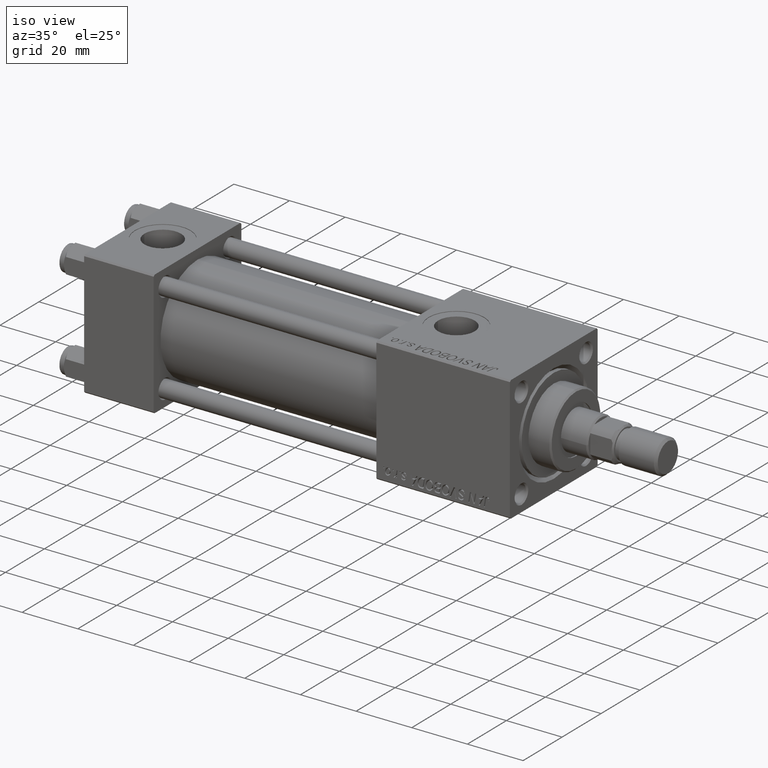
[diagram: clean part render]
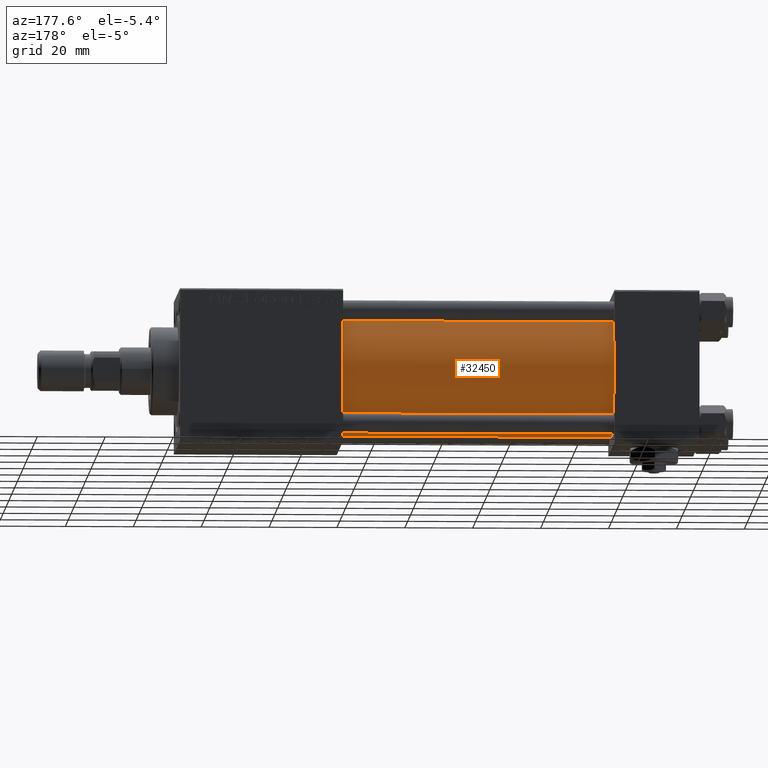
[diagram: tour spotlight — one face highlighted and labeled with its STEP entity id]
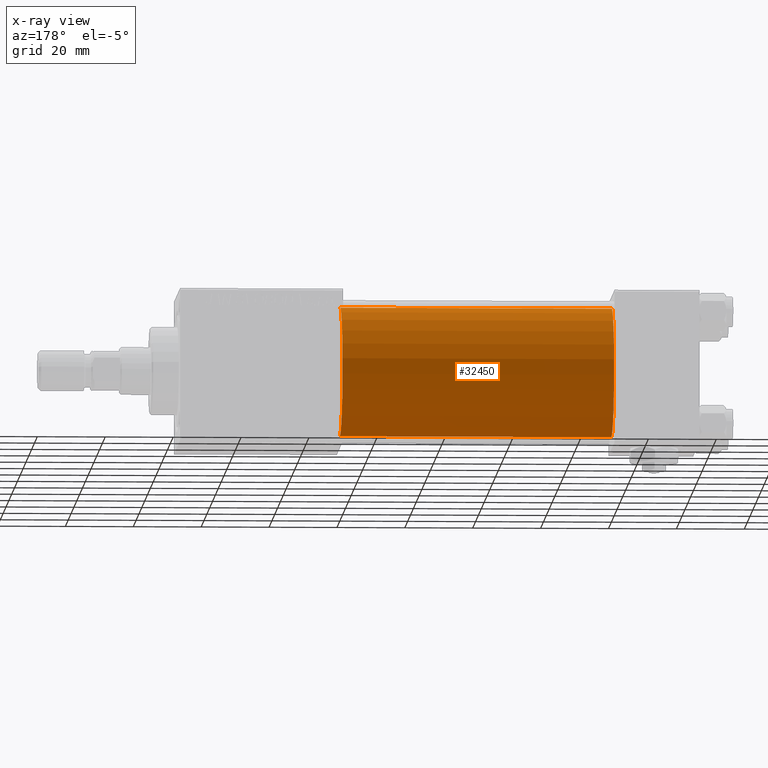
[diagram: x-ray of the same camera — body ghosted, this tour face saturated]
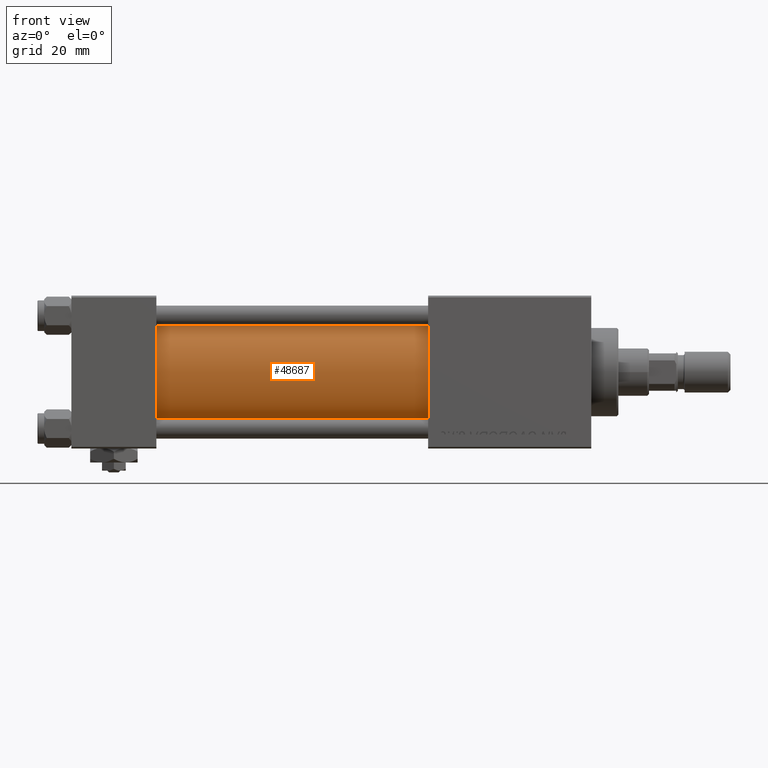
[diagram: tour spotlight — one face highlighted and labeled with its STEP entity id]
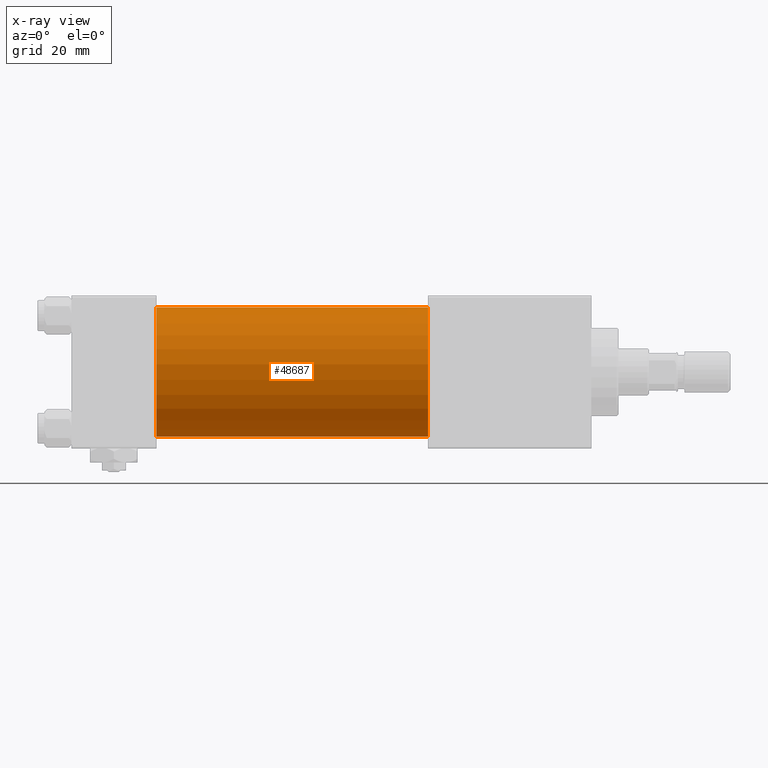
[diagram: x-ray of the same camera — body ghosted, this tour face saturated]
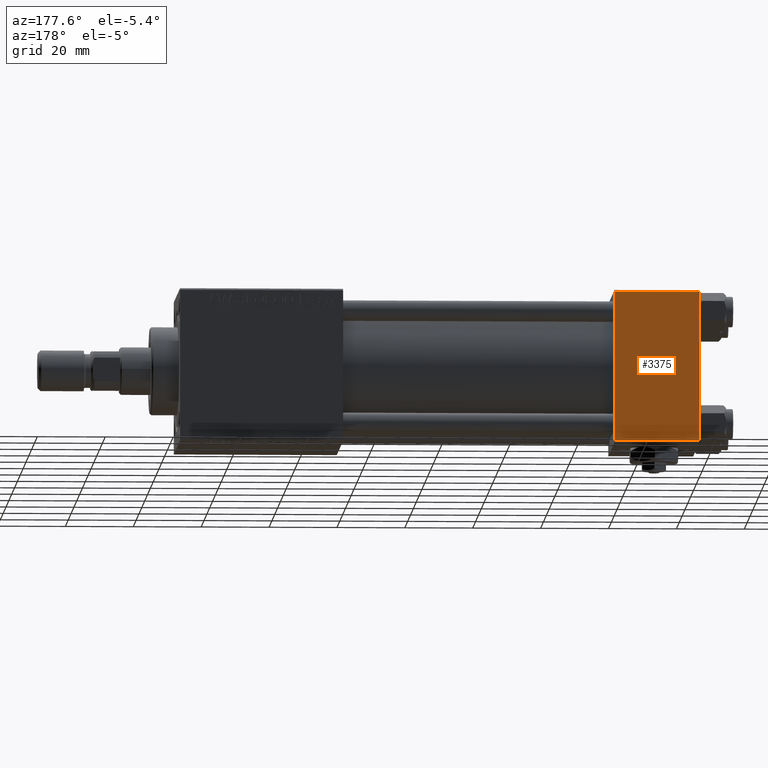
[diagram: tour spotlight — one face highlighted and labeled with its STEP entity id]
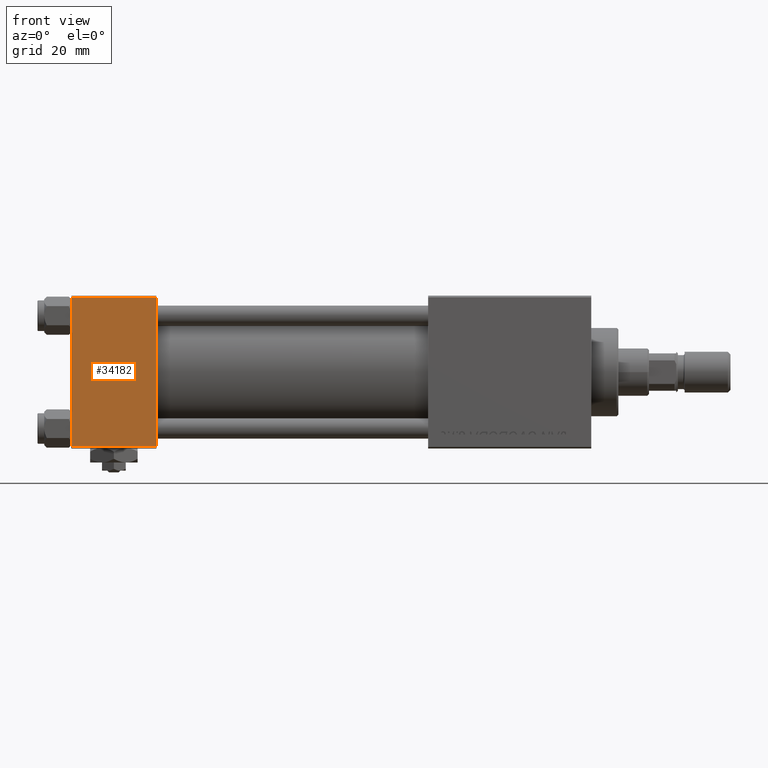
[diagram: tour spotlight — one face highlighted and labeled with its STEP entity id]
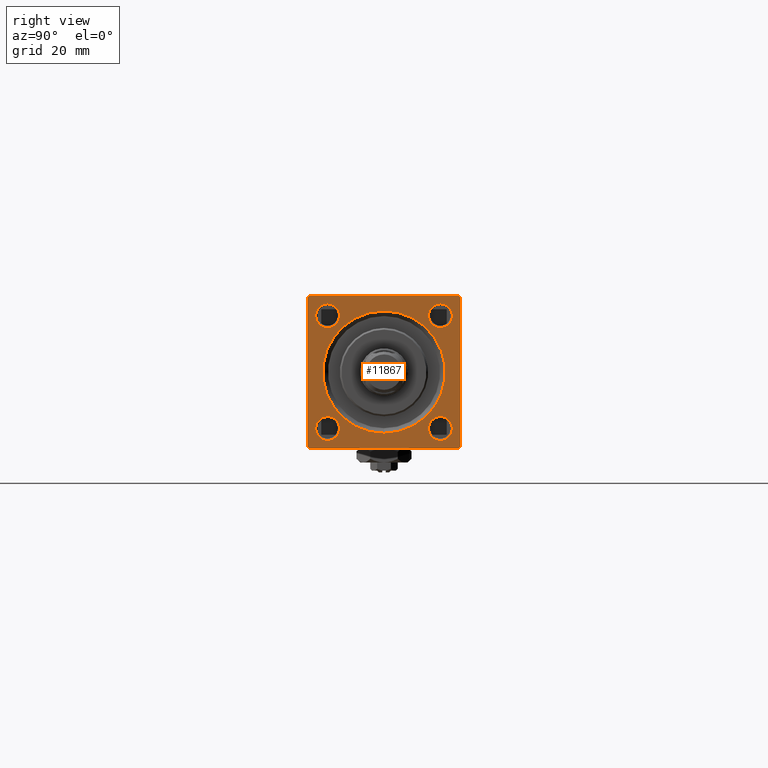
[diagram: tour spotlight — one face highlighted and labeled with its STEP entity id]
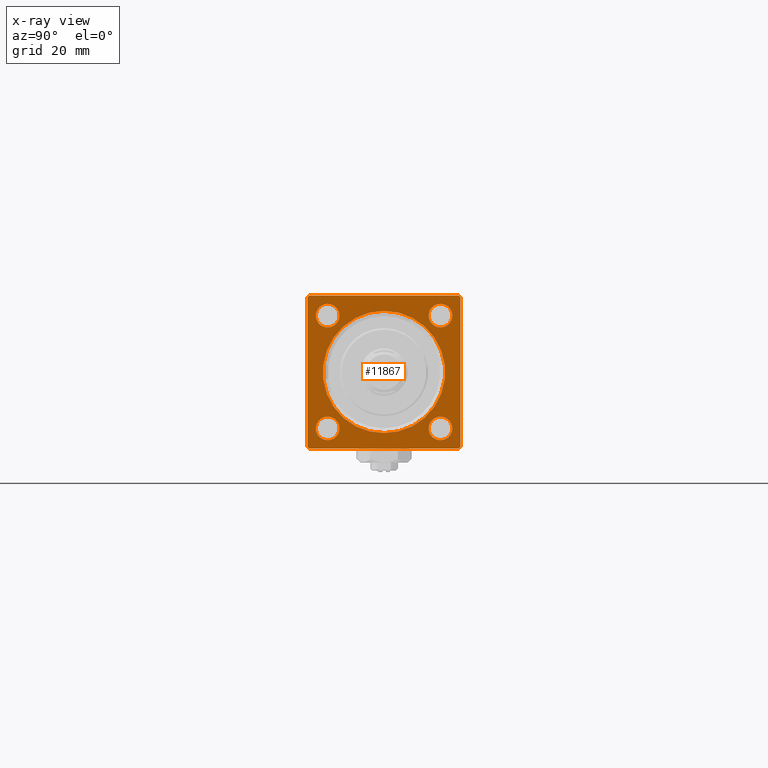
[diagram: x-ray of the same camera — body ghosted, this tour face saturated]
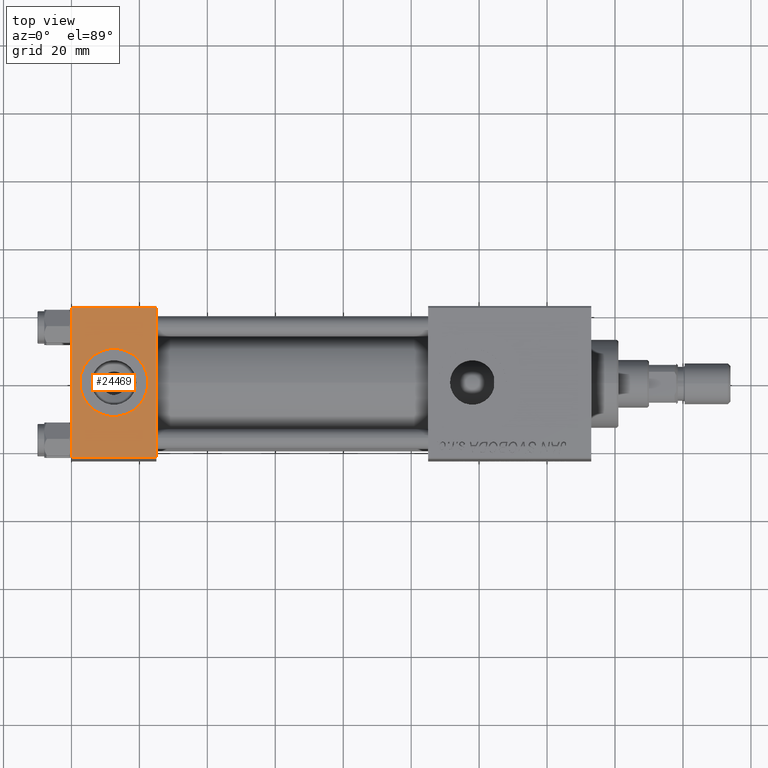
[diagram: tour spotlight — one face highlighted and labeled with its STEP entity id]
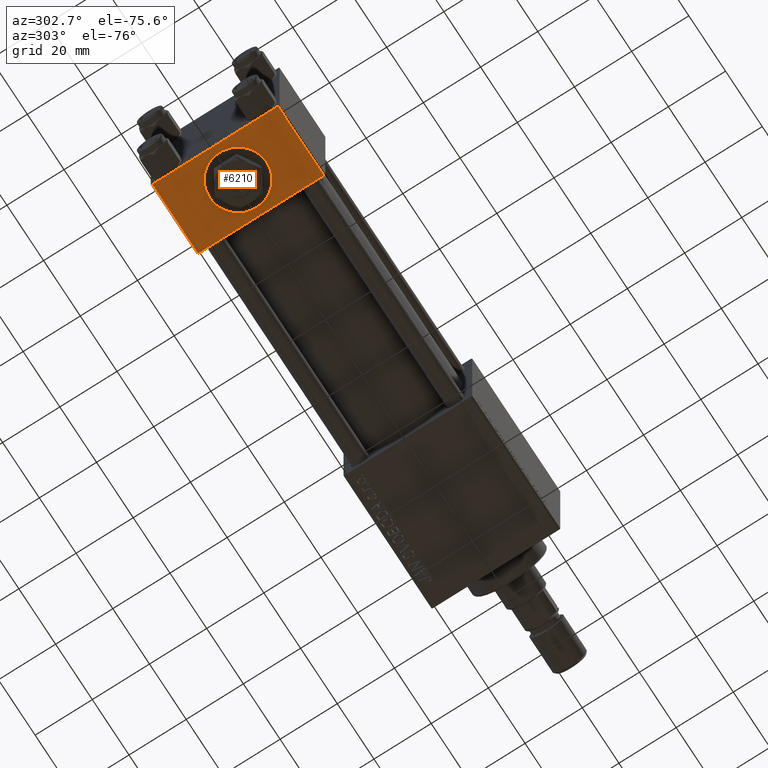
[diagram: tour spotlight — one face highlighted and labeled with its STEP entity id]
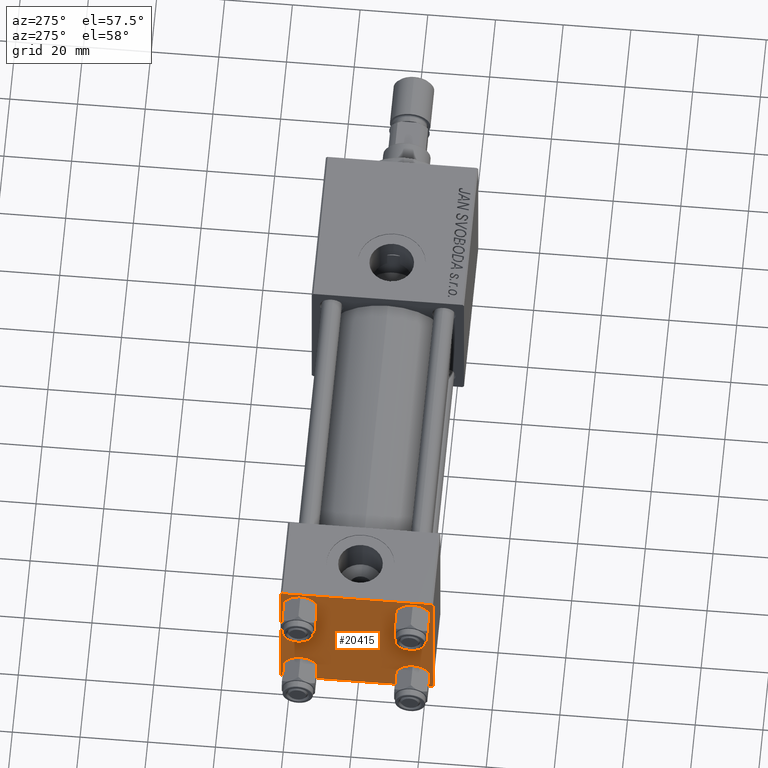
[diagram: tour spotlight — one face highlighted and labeled with its STEP entity id]
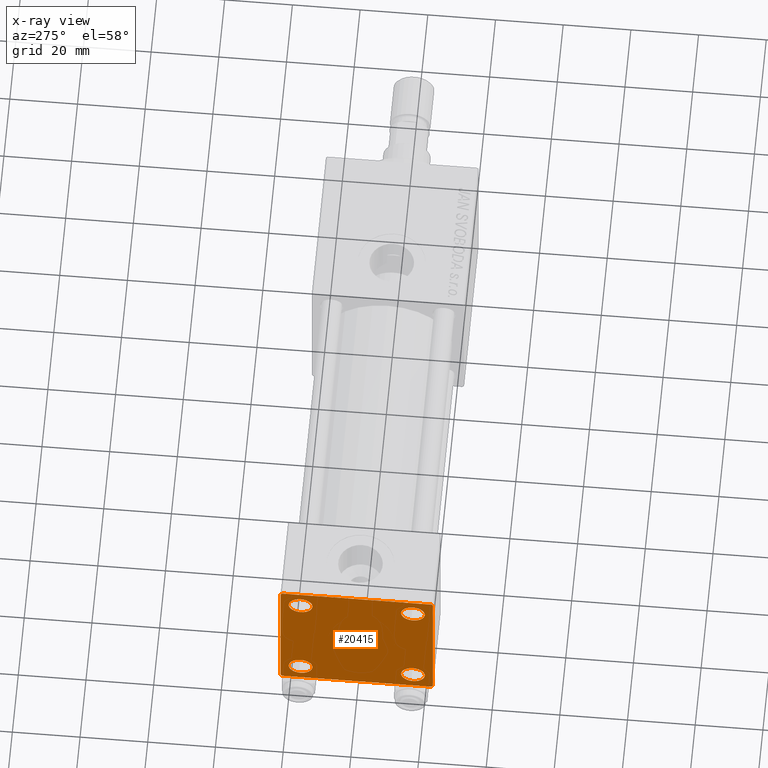
[diagram: x-ray of the same camera — body ghosted, this tour face saturated]
A machine part: a face-by-face anatomy tour. The part has 1214 B-rep faces; the first image is the clean iso view, then the 8 largest visible faces are spotlighted one at a time (largest first), each with its STEP entity span.

Face 1 — auxiliary view, entity #32450. An x-ray twin of the same camera follows (body ghosted, this face saturated) — the face is partly hidden behind the body. In plain terms, the highlighted cylindrical surface (partial cylindrical patch) has radius 19 mm, axis along (-1, -0, -0).
Definition (entity closure, byte-faithful):
#2626 = VERTEX_POINT ( 'NONE', #47678 ) ;
#3446 = ORIENTED_EDGE ( 'NONE', *, *, #18415, .F. ) ;
#6341 = ORIENTED_EDGE ( 'NONE', *, *, #18457, .T. ) ;
#8633 = LINE ( 'NONE', #24800, #45404 ) ;
#9630 = CARTESIAN_POINT ( 'NONE',  ( 105.0000000000000142, -2.602085213965210642E-15, 0.000000000000000000 ) ) ;
#9761 = AXIS2_PLACEMENT_3D ( 'NONE', #9630, #26321, #35319 ) ;
#11617 = ORIENTED_EDGE ( 'NONE', *, *, #37632, .T. ) ;
#14026 = CIRCLE ( 'NONE', #49579, 19.00000000000000000 ) ;
#17356 = DIRECTION ( 'NONE',  ( 1.000000000000000000, 0.000000000000000000, 0.000000000000000000 ) ) ;
#18415 = EDGE_CURVE ( 'NONE', #2626, #24992, #37773, .T. ) ;
#18457 = EDGE_CURVE ( 'NONE', #2626, #36763, #8633, .T. ) ;
#19051 = EDGE_LOOP ( 'NONE', ( #3446, #6341, #11617, #42609 ) ) ;
#19401 = CARTESIAN_POINT ( 'NONE',  ( 105.0000000000000142, -2.602085213965210642E-15, 19.00000000000000000 ) ) ;
#19584 = VERTEX_POINT ( 'NONE', #38293 ) ;
#19602 = VECTOR ( 'NONE', #22861, 1000.000000000000000 ) ;
#21870 = CARTESIAN_POINT ( 'NONE',  ( 105.0000000000000142, -2.602085213965210642E-15, 19.00000000000000000 ) ) ;
#22570 = AXIS2_PLACEMENT_3D ( 'NONE', #45693, #17356, #49141 ) ;
#22861 = DIRECTION ( 'NONE',  ( -1.000000000000000000, -0.000000000000000000, -0.000000000000000000 ) ) ;
#24296 = EDGE_CURVE ( 'NONE', #24992, #19584, #42985, .T. ) ;
#24800 = CARTESIAN_POINT ( 'NONE',  ( 105.0000000000000142, -2.752562955852396712E-16, -19.00000000000000000 ) ) ;
#24992 = VERTEX_POINT ( 'NONE', #21870 ) ;
#26321 = DIRECTION ( 'NONE',  ( -1.000000000000000000, -0.000000000000000000, -0.000000000000000000 ) ) ;
#29563 = DIRECTION ( 'NONE',  ( -1.000000000000000000, -0.000000000000000000, -0.000000000000000000 ) ) ;
#29780 = FACE_OUTER_BOUND ( 'NONE', #19051, .T. ) ;
#32450 = ADVANCED_FACE ( 'NONE', ( #29780 ), #45911, .T. ) ;
#33056 = CARTESIAN_POINT ( 'NONE',  ( 24.99999999999999289, -2.602085213965210642E-15, 0.000000000000000000 ) ) ;
#35319 = DIRECTION ( 'NONE',  ( 0.000000000000000000, 0.000000000000000000, 1.000000000000000000 ) ) ;
#36763 = VERTEX_POINT ( 'NONE', #41496 ) ;
#37632 = EDGE_CURVE ( 'NONE', #36763, #19584, #14026, .T. ) ;
#37773 = CIRCLE ( 'NONE', #22570, 19.00000000000000000 ) ;
#38293 = CARTESIAN_POINT ( 'NONE',  ( 24.99999999999999289, -2.602085213965210642E-15, 19.00000000000000000 ) ) ;
#41496 = CARTESIAN_POINT ( 'NONE',  ( 24.99999999999999289, -2.752562955852396712E-16, -19.00000000000000000 ) ) ;
#42609 = ORIENTED_EDGE ( 'NONE', *, *, #24296, .F. ) ;
#42985 = LINE ( 'NONE', #19401, #19602 ) ;
#44706 = DIRECTION ( 'NONE',  ( 0.000000000000000000, 0.000000000000000000, 1.000000000000000000 ) ) ;
#44964 = DIRECTION ( 'NONE',  ( 1.000000000000000000, -0.000000000000000000, 0.000000000000000000 ) ) ;
#45404 = VECTOR ( 'NONE', #29563, 1000.000000000000000 ) ;
#45693 = CARTESIAN_POINT ( 'NONE',  ( 105.0000000000000142, -2.602085213965210642E-15, 0.000000000000000000 ) ) ;
#45911 = CYLINDRICAL_SURFACE ( 'NONE', #9761, 19.00000000000000000 ) ;
#47678 = CARTESIAN_POINT ( 'NONE',  ( 105.0000000000000142, -2.752562955852396712E-16, -19.00000000000000000 ) ) ;
#49141 = DIRECTION ( 'NONE',  ( 0.000000000000000000, 0.000000000000000000, -1.000000000000000000 ) ) ;
#49579 = AXIS2_PLACEMENT_3D ( 'NONE', #33056, #44964, #44706 ) ;

Face 2 — front view, entity #48687. An x-ray twin of the same camera follows (body ghosted, this face saturated) — the face is partly hidden behind the body. In plain terms, the highlighted cylindrical surface (partial cylindrical patch) has radius 19 mm, axis along (-1, -0, -0).
Definition (entity closure, byte-faithful):
#713 = AXIS2_PLACEMENT_3D ( 'NONE', #39622, #2549, #35123 ) ;
#2549 = DIRECTION ( 'NONE',  ( -1.000000000000000000, -0.000000000000000000, -0.000000000000000000 ) ) ;
#2626 = VERTEX_POINT ( 'NONE', #47678 ) ;
#4378 = DIRECTION ( 'NONE',  ( 0.000000000000000000, 0.000000000000000000, -1.000000000000000000 ) ) ;
#8633 = LINE ( 'NONE', #24800, #45404 ) ;
#11008 = CIRCLE ( 'NONE', #49082, 19.00000000000000000 ) ;
#18457 = EDGE_CURVE ( 'NONE', #2626, #36763, #8633, .T. ) ;
#19401 = CARTESIAN_POINT ( 'NONE',  ( 105.0000000000000142, -2.602085213965210642E-15, 19.00000000000000000 ) ) ;
#19584 = VERTEX_POINT ( 'NONE', #38293 ) ;
#19602 = VECTOR ( 'NONE', #22861, 1000.000000000000000 ) ;
#19736 = CARTESIAN_POINT ( 'NONE',  ( 105.0000000000000142, -2.602085213965210642E-15, 0.000000000000000000 ) ) ;
#21870 = CARTESIAN_POINT ( 'NONE',  ( 105.0000000000000142, -2.602085213965210642E-15, 19.00000000000000000 ) ) ;
#22861 = DIRECTION ( 'NONE',  ( -1.000000000000000000, -0.000000000000000000, -0.000000000000000000 ) ) ;
#23440 = DIRECTION ( 'NONE',  ( 0.000000000000000000, 0.000000000000000000, 1.000000000000000000 ) ) ;
#23472 = CYLINDRICAL_SURFACE ( 'NONE', #713, 19.00000000000000000 ) ;
#24296 = EDGE_CURVE ( 'NONE', #24992, #19584, #42985, .T. ) ;
#24800 = CARTESIAN_POINT ( 'NONE',  ( 105.0000000000000142, -2.752562955852396712E-16, -19.00000000000000000 ) ) ;
#24992 = VERTEX_POINT ( 'NONE', #21870 ) ;
#25802 = ORIENTED_EDGE ( 'NONE', *, *, #24296, .T. ) ;
#26564 = CIRCLE ( 'NONE', #46855, 19.00000000000000000 ) ;
#27452 = FACE_OUTER_BOUND ( 'NONE', #29863, .T. ) ;
#28756 = DIRECTION ( 'NONE',  ( 1.000000000000000000, 0.000000000000000000, 0.000000000000000000 ) ) ;
#29563 = DIRECTION ( 'NONE',  ( -1.000000000000000000, -0.000000000000000000, -0.000000000000000000 ) ) ;
#29755 = EDGE_CURVE ( 'NONE', #19584, #36763, #26564, .T. ) ;
#29863 = EDGE_LOOP ( 'NONE', ( #51728, #39054, #25802, #37314 ) ) ;
#35123 = DIRECTION ( 'NONE',  ( 0.000000000000000000, 0.000000000000000000, 1.000000000000000000 ) ) ;
#36763 = VERTEX_POINT ( 'NONE', #41496 ) ;
#37314 = ORIENTED_EDGE ( 'NONE', *, *, #29755, .T. ) ;
#38293 = CARTESIAN_POINT ( 'NONE',  ( 24.99999999999999289, -2.602085213965210642E-15, 19.00000000000000000 ) ) ;
#39054 = ORIENTED_EDGE ( 'NONE', *, *, #47709, .F. ) ;
#39590 = DIRECTION ( 'NONE',  ( 1.000000000000000000, -0.000000000000000000, 0.000000000000000000 ) ) ;
#39622 = CARTESIAN_POINT ( 'NONE',  ( 105.0000000000000142, -2.602085213965210642E-15, 0.000000000000000000 ) ) ;
#41496 = CARTESIAN_POINT ( 'NONE',  ( 24.99999999999999289, -2.752562955852396712E-16, -19.00000000000000000 ) ) ;
#42985 = LINE ( 'NONE', #19401, #19602 ) ;
#45404 = VECTOR ( 'NONE', #29563, 1000.000000000000000 ) ;
#46855 = AXIS2_PLACEMENT_3D ( 'NONE', #47261, #39590, #23440 ) ;
#47261 = CARTESIAN_POINT ( 'NONE',  ( 24.99999999999999289, -2.602085213965210642E-15, 0.000000000000000000 ) ) ;
#47678 = CARTESIAN_POINT ( 'NONE',  ( 105.0000000000000142, -2.752562955852396712E-16, -19.00000000000000000 ) ) ;
#47709 = EDGE_CURVE ( 'NONE', #24992, #2626, #11008, .T. ) ;
#48687 = ADVANCED_FACE ( 'NONE', ( #27452 ), #23472, .T. ) ;
#49082 = AXIS2_PLACEMENT_3D ( 'NONE', #19736, #28756, #4378 ) ;
#51728 = ORIENTED_EDGE ( 'NONE', *, *, #18457, .F. ) ;

Face 3 — auxiliary view, entity #3375. In plain terms, the highlighted planar face has unit normal (0, 1, 0).
Definition (entity closure, byte-faithful):
#3208 = LINE ( 'NONE', #23857, #19062 ) ;
#3375 = ADVANCED_FACE ( 'NONE', ( #48535 ), #4320, .T. ) ;
#3580 = ORIENTED_EDGE ( 'NONE', *, *, #35492, .T. ) ;
#4068 = DIRECTION ( 'NONE',  ( 0.000000000000000000, -0.000000000000000000, 1.000000000000000000 ) ) ;
#4320 = PLANE ( 'NONE',  #31590 ) ;
#5869 = VECTOR ( 'NONE', #20842, 1000.000000000000000 ) ;
#8990 = CARTESIAN_POINT ( 'NONE',  ( 0.000000000000000000, 22.50000000000000000, 22.50000000000000355 ) ) ;
#9352 = CARTESIAN_POINT ( 'NONE',  ( 25.00000000000000000, 22.50000000000000000, 22.50000000000000355 ) ) ;
#10308 = CARTESIAN_POINT ( 'NONE',  ( 0.000000000000000000, 22.50000000000000000, 21.99999999999999645 ) ) ;
#12258 = CARTESIAN_POINT ( 'NONE',  ( 25.00000000000000000, 22.50000000000000000, 22.50000000000000355 ) ) ;
#15893 = VERTEX_POINT ( 'NONE', #10308 ) ;
#17290 = DIRECTION ( 'NONE',  ( 0.000000000000000000, 0.000000000000000000, -1.000000000000000000 ) ) ;
#17336 = ORIENTED_EDGE ( 'NONE', *, *, #45184, .F. ) ;
#18590 = CARTESIAN_POINT ( 'NONE',  ( 0.000000000000000000, 22.50000000000000000, -21.99999999999996803 ) ) ;
#19062 = VECTOR ( 'NONE', #27844, 1000.000000000000000 ) ;
#20318 = LINE ( 'NONE', #36486, #5869 ) ;
#20842 = DIRECTION ( 'NONE',  ( 1.000000000000000000, 0.000000000000000000, 0.000000000000000000 ) ) ;
#23857 = CARTESIAN_POINT ( 'NONE',  ( 25.00000000000000000, 22.50000000000000000, -21.99999999999998224 ) ) ;
#27844 = DIRECTION ( 'NONE',  ( -1.000000000000000000, 0.000000000000000000, 0.000000000000000000 ) ) ;
#28104 = ORIENTED_EDGE ( 'NONE', *, *, #50775, .T. ) ;
#30420 = CARTESIAN_POINT ( 'NONE',  ( 25.00000000000000000, 22.50000000000000000, 21.99999999999999645 ) ) ;
#30646 = VERTEX_POINT ( 'NONE', #18590 ) ;
#30723 = LINE ( 'NONE', #9352, #30915 ) ;
#30915 = VECTOR ( 'NONE', #17290, 1000.000000000000000 ) ;
#31590 = AXIS2_PLACEMENT_3D ( 'NONE', #12258, #32146, #4068 ) ;
#32146 = DIRECTION ( 'NONE',  ( -0.000000000000000000, 1.000000000000000000, 0.000000000000000000 ) ) ;
#32842 = EDGE_CURVE ( 'NONE', #39282, #30646, #3208, .T. ) ;
#35492 = EDGE_CURVE ( 'NONE', #47214, #39282, #30723, .T. ) ;
#36340 = CARTESIAN_POINT ( 'NONE',  ( 25.00000000000000000, 22.50000000000000000, -21.99999999999996803 ) ) ;
#36486 = CARTESIAN_POINT ( 'NONE',  ( 25.00000000000000000, 22.50000000000000000, 21.99999999999999645 ) ) ;
#39282 = VERTEX_POINT ( 'NONE', #36340 ) ;
#40224 = ORIENTED_EDGE ( 'NONE', *, *, #32842, .T. ) ;
#41378 = VECTOR ( 'NONE', #49495, 1000.000000000000000 ) ;
#43783 = EDGE_LOOP ( 'NONE', ( #3580, #40224, #17336, #28104 ) ) ;
#45184 = EDGE_CURVE ( 'NONE', #15893, #30646, #45274, .T. ) ;
#45274 = LINE ( 'NONE', #8990, #41378 ) ;
#47214 = VERTEX_POINT ( 'NONE', #30420 ) ;
#48535 = FACE_OUTER_BOUND ( 'NONE', #43783, .T. ) ;
#49495 = DIRECTION ( 'NONE',  ( 0.000000000000000000, 0.000000000000000000, -1.000000000000000000 ) ) ;
#50775 = EDGE_CURVE ( 'NONE', #15893, #47214, #20318, .T. ) ;

Face 4 — front view, entity #34182. In plain terms, the highlighted planar face has unit normal (0, 1, 0).
Definition (entity closure, byte-faithful):
#281 = LINE ( 'NONE', #12964, #42610 ) ;
#1088 = CARTESIAN_POINT ( 'NONE',  ( 25.00000000000000000, -22.50000000000000000, 22.00000000000000000 ) ) ;
#2701 = ORIENTED_EDGE ( 'NONE', *, *, #51672, .T. ) ;
#2755 = ORIENTED_EDGE ( 'NONE', *, *, #44263, .T. ) ;
#4503 = DIRECTION ( 'NONE',  ( 0.000000000000000000, 0.000000000000000000, -1.000000000000000000 ) ) ;
#5268 = EDGE_CURVE ( 'NONE', #34497, #41048, #52123, .T. ) ;
#8141 = EDGE_CURVE ( 'NONE', #34497, #37888, #281, .T. ) ;
#9722 = CARTESIAN_POINT ( 'NONE',  ( 0.000000000000000000, -22.50000000000000000, -21.99999999999997158 ) ) ;
#10324 = VERTEX_POINT ( 'NONE', #9722 ) ;
#11808 = CARTESIAN_POINT ( 'NONE',  ( 25.00000000000000000, -22.50000000000000000, -21.99999999999997158 ) ) ;
#12139 = DIRECTION ( 'NONE',  ( -1.000000000000000000, 0.000000000000000000, 0.000000000000000000 ) ) ;
#12964 = CARTESIAN_POINT ( 'NONE',  ( 25.00000000000000000, -22.50000000000000000, 22.50000000000000000 ) ) ;
#15415 = VECTOR ( 'NONE', #12139, 1000.000000000000000 ) ;
#17280 = PLANE ( 'NONE',  #36899 ) ;
#21865 = VECTOR ( 'NONE', #4503, 1000.000000000000000 ) ;
#22654 = CARTESIAN_POINT ( 'NONE',  ( 0.000000000000000000, -22.50000000000000000, 22.00000000000000000 ) ) ;
#24760 = ORIENTED_EDGE ( 'NONE', *, *, #8141, .F. ) ;
#24896 = DIRECTION ( 'NONE',  ( 0.000000000000000000, 0.000000000000000000, -1.000000000000000000 ) ) ;
#24986 = DIRECTION ( 'NONE',  ( -0.000000000000000000, 1.000000000000000000, 0.000000000000000000 ) ) ;
#27249 = LINE ( 'NONE', #35198, #48138 ) ;
#28046 = CARTESIAN_POINT ( 'NONE',  ( 25.00000000000000000, -22.50000000000000000, 22.00000000000000000 ) ) ;
#29488 = CARTESIAN_POINT ( 'NONE',  ( 25.00000000000000000, -22.50000000000000000, 22.50000000000000000 ) ) ;
#29773 = EDGE_LOOP ( 'NONE', ( #2755, #2701, #24760, #31088 ) ) ;
#31088 = ORIENTED_EDGE ( 'NONE', *, *, #5268, .T. ) ;
#34182 = ADVANCED_FACE ( 'NONE', ( #48549 ), #17280, .F. ) ;
#34497 = VERTEX_POINT ( 'NONE', #1088 ) ;
#35198 = CARTESIAN_POINT ( 'NONE',  ( 25.00000000000000000, -22.50000000000000000, -21.99999999999998579 ) ) ;
#36045 = LINE ( 'NONE', #40523, #21865 ) ;
#36899 = AXIS2_PLACEMENT_3D ( 'NONE', #29488, #24986, #45620 ) ;
#37888 = VERTEX_POINT ( 'NONE', #11808 ) ;
#40523 = CARTESIAN_POINT ( 'NONE',  ( 0.000000000000000000, -22.50000000000000000, 22.50000000000000000 ) ) ;
#41048 = VERTEX_POINT ( 'NONE', #22654 ) ;
#42610 = VECTOR ( 'NONE', #24896, 1000.000000000000000 ) ;
#44263 = EDGE_CURVE ( 'NONE', #41048, #10324, #36045, .T. ) ;
#45620 = DIRECTION ( 'NONE',  ( 0.000000000000000000, -0.000000000000000000, 1.000000000000000000 ) ) ;
#48138 = VECTOR ( 'NONE', #48862, 1000.000000000000000 ) ;
#48549 = FACE_OUTER_BOUND ( 'NONE', #29773, .T. ) ;
#48862 = DIRECTION ( 'NONE',  ( 1.000000000000000000, 0.000000000000000000, 0.000000000000000000 ) ) ;
#51672 = EDGE_CURVE ( 'NONE', #10324, #37888, #27249, .T. ) ;
#52123 = LINE ( 'NONE', #28046, #15415 ) ;

Face 5 — right view, entity #11867. An x-ray twin of the same camera follows (body ghosted, this face saturated) — the face is partly hidden behind the body. In plain terms, the highlighted planar face has unit normal (-1, 0, 0).
Definition (entity closure, byte-faithful):
#16 = LINE ( 'NONE', #40524, #11276 ) ;
#631 = DIRECTION ( 'NONE',  ( -1.000000000000000000, 0.000000000000000000, -0.000000000000000000 ) ) ;
#951 = CARTESIAN_POINT ( 'NONE',  ( 153.0000000000000284, 0.000000000000000000, 0.000000000000000000 ) ) ;
#1298 = CARTESIAN_POINT ( 'NONE',  ( 153.0000000000000284, -22.49999999999999645, 21.99999999999999289 ) ) ;
#1410 = LINE ( 'NONE', #17545, #7377 ) ;
#1635 = EDGE_LOOP ( 'NONE', ( #19410, #44924 ) ) ;
#2666 = EDGE_LOOP ( 'NONE', ( #18609, #16557 ) ) ;
#2767 = EDGE_CURVE ( 'NONE', #7584, #42730, #23954, .T. ) ;
#2773 = EDGE_CURVE ( 'NONE', #32184, #50708, #16, .T. ) ;
#2889 = PLANE ( 'NONE',  #19052 ) ;
#3322 = CARTESIAN_POINT ( 'NONE',  ( 153.0000000000000284, -16.60000000000000497, -16.60000000000000497 ) ) ;
#4377 = CARTESIAN_POINT ( 'NONE',  ( 153.0000000000000284, -16.59999999999999787, 16.59999999999999787 ) ) ;
#4634 = DIRECTION ( 'NONE',  ( 0.000000000000000000, 0.000000000000000000, 1.000000000000000000 ) ) ;
#6039 = CARTESIAN_POINT ( 'NONE',  ( 153.0000000000000284, 21.99999999999998934, -22.49999999999999645 ) ) ;
#6488 = AXIS2_PLACEMENT_3D ( 'NONE', #32415, #631, #17022 ) ;
#6589 = CARTESIAN_POINT ( 'NONE',  ( 153.0000000000000284, 0.000000000000000000, 0.000000000000000000 ) ) ;
#6725 = CARTESIAN_POINT ( 'NONE',  ( 153.0000000000000284, -16.60000000000000497, -16.60000000000000497 ) ) ;
#7036 = CARTESIAN_POINT ( 'NONE',  ( 153.0000000000000284, -22.49999999999999645, 22.49999999999999289 ) ) ;
#7377 = VECTOR ( 'NONE', #33731, 1000.000000000000000 ) ;
#7539 = CARTESIAN_POINT ( 'NONE',  ( 153.0000000000000284, 22.00000000000000355, 22.50000000000000355 ) ) ;
#7584 = VERTEX_POINT ( 'NONE', #43498 ) ;
#7780 = CIRCLE ( 'NONE', #19609, 3.499999999999989342 ) ;
#8674 = EDGE_LOOP ( 'NONE', ( #34470, #23121 ) ) ;
#8697 = CARTESIAN_POINT ( 'NONE',  ( 153.0000000000000284, 16.59999999999999787, 16.60000000000000497 ) ) ;
#9638 = CARTESIAN_POINT ( 'NONE',  ( 153.0000000000000284, 22.50000000000000355, 22.50000000000000355 ) ) ;
#9700 = EDGE_CURVE ( 'NONE', #18922, #34379, #44350, .T. ) ;
#9799 = CARTESIAN_POINT ( 'NONE',  ( 153.0000000000000284, -21.99999999999999645, -22.50000000000000000 ) ) ;
#9815 = VECTOR ( 'NONE', #14982, 1000.000000000000000 ) ;
#10709 = DIRECTION ( 'NONE',  ( 0.000000000000000000, 0.000000000000000000, 1.000000000000000000 ) ) ;
#11087 = CARTESIAN_POINT ( 'NONE',  ( 153.0000000000000284, -16.60000000000000497, -13.10000000000001386 ) ) ;
#11276 = VECTOR ( 'NONE', #11929, 1000.000000000000000 ) ;
#11570 = ORIENTED_EDGE ( 'NONE', *, *, #14454, .T. ) ;
#11609 = ORIENTED_EDGE ( 'NONE', *, *, #45510, .T. ) ;
#11867 = ADVANCED_FACE ( 'NONE', ( #26732, #13749, #34422, #46059, #42878, #26216 ), #2889, .F. ) ;
#11929 = DIRECTION ( 'NONE',  ( 0.000000000000000000, -1.000000000000000000, -7.709882115452476934E-17 ) ) ;
#12583 = LINE ( 'NONE', #9638, #26977 ) ;
#12661 = ORIENTED_EDGE ( 'NONE', *, *, #31411, .T. ) ;
#12994 = CARTESIAN_POINT ( 'NONE',  ( 153.0000000000000284, -16.59999999999999787, 20.09999999999998721 ) ) ;
#13094 = DIRECTION ( 'NONE',  ( 0.000000000000000000, -1.000000000000000000, -2.312964634635742957E-16 ) ) ;
#13120 = VERTEX_POINT ( 'NONE', #31970 ) ;
#13725 = VERTEX_POINT ( 'NONE', #11087 ) ;
#13749 = FACE_BOUND ( 'NONE', #2666, .T. ) ;
#14007 = DIRECTION ( 'NONE',  ( -0.000000000000000000, 0.000000000000000000, 1.000000000000000000 ) ) ;
#14098 = EDGE_CURVE ( 'NONE', #40817, #17555, #48083, .T. ) ;
#14226 = ORIENTED_EDGE ( 'NONE', *, *, #39367, .T. ) ;
#14454 = EDGE_CURVE ( 'NONE', #42730, #7584, #47058, .T. ) ;
#14482 = VECTOR ( 'NONE', #39855, 1000.000000000000114 ) ;
#14792 = CIRCLE ( 'NONE', #45249, 3.499999999999989342 ) ;
#14961 = ORIENTED_EDGE ( 'NONE', *, *, #2773, .F. ) ;
#14982 = DIRECTION ( 'NONE',  ( 0.000000000000000000, 0.000000000000000000, -1.000000000000000000 ) ) ;
#15065 = VERTEX_POINT ( 'NONE', #19830 ) ;
#15121 = DIRECTION ( 'NONE',  ( 0.000000000000000000, 0.000000000000000000, 1.000000000000000000 ) ) ;
#15315 = EDGE_CURVE ( 'NONE', #13725, #34320, #32722, .T. ) ;
#15480 = EDGE_CURVE ( 'NONE', #47731, #40817, #1410, .T. ) ;
#16079 = CARTESIAN_POINT ( 'NONE',  ( 153.0000000000000284, -16.59999999999999787, 13.10000000000000675 ) ) ;
#16557 = ORIENTED_EDGE ( 'NONE', *, *, #20955, .T. ) ;
#16623 = AXIS2_PLACEMENT_3D ( 'NONE', #8697, #16897, #36780 ) ;
#16643 = VECTOR ( 'NONE', #45827, 999.9999999999998863 ) ;
#16742 = DIRECTION ( 'NONE',  ( -0.000000000000000000, 0.7071067811865376918, 0.7071067811865574537 ) ) ;
#16897 = DIRECTION ( 'NONE',  ( -1.000000000000000000, 0.000000000000000000, -0.000000000000000000 ) ) ;
#17014 = DIRECTION ( 'NONE',  ( 0.000000000000000000, 0.000000000000000000, -1.000000000000000000 ) ) ;
#17022 = DIRECTION ( 'NONE',  ( 0.000000000000000000, 0.000000000000000000, 1.000000000000000000 ) ) ;
#17545 = CARTESIAN_POINT ( 'NONE',  ( 153.0000000000000284, -22.49999999999999645, 21.99999999999999289 ) ) ;
#17555 = VERTEX_POINT ( 'NONE', #32621 ) ;
#17645 = VERTEX_POINT ( 'NONE', #12994 ) ;
#17685 = CARTESIAN_POINT ( 'NONE',  ( 153.0000000000000284, 16.59999999999999787, -13.10000000000001386 ) ) ;
#18107 = EDGE_CURVE ( 'NONE', #30068, #15065, #25947, .T. ) ;
#18520 = EDGE_CURVE ( 'NONE', #21457, #17645, #34447, .T. ) ;
#18609 = ORIENTED_EDGE ( 'NONE', *, *, #18520, .T. ) ;
#18922 = VERTEX_POINT ( 'NONE', #20364 ) ;
#19005 = CARTESIAN_POINT ( 'NONE',  ( 153.0000000000000284, -21.99999999999998224, -22.50000000000000000 ) ) ;
#19052 = AXIS2_PLACEMENT_3D ( 'NONE', #6589, #34938, #14007 ) ;
#19410 = ORIENTED_EDGE ( 'NONE', *, *, #30019, .T. ) ;
#19459 = DIRECTION ( 'NONE',  ( 0.000000000000000000, 0.000000000000000000, 1.000000000000000000 ) ) ;
#19609 = AXIS2_PLACEMENT_3D ( 'NONE', #4377, #48854, #4634 ) ;
#19830 = CARTESIAN_POINT ( 'NONE',  ( 153.0000000000000284, 16.59999999999999787, 13.10000000000001386 ) ) ;
#19838 = CIRCLE ( 'NONE', #41838, 18.00000000000000355 ) ;
#19868 = DIRECTION ( 'NONE',  ( -1.000000000000000000, 0.000000000000000000, -0.000000000000000000 ) ) ;
#20013 = ORIENTED_EDGE ( 'NONE', *, *, #23042, .T. ) ;
#20364 = CARTESIAN_POINT ( 'NONE',  ( 153.0000000000000284, 2.204364238465235822E-15, 18.00000000000000355 ) ) ;
#20955 = EDGE_CURVE ( 'NONE', #17645, #21457, #7780, .T. ) ;
#21457 = VERTEX_POINT ( 'NONE', #16079 ) ;
#21526 = CARTESIAN_POINT ( 'NONE',  ( 153.0000000000000284, -16.60000000000000497, -20.09999999999999432 ) ) ;
#22640 = CARTESIAN_POINT ( 'NONE',  ( 153.0000000000000284, -16.59999999999999787, 16.59999999999999787 ) ) ;
#22842 = DIRECTION ( 'NONE',  ( -1.000000000000000000, 0.000000000000000000, -0.000000000000000000 ) ) ;
#22890 = DIRECTION ( 'NONE',  ( -1.000000000000000000, 0.000000000000000000, -0.000000000000000000 ) ) ;
#23042 = EDGE_CURVE ( 'NONE', #13120, #42605, #35102, .T. ) ;
#23121 = ORIENTED_EDGE ( 'NONE', *, *, #18107, .T. ) ;
#23224 = ORIENTED_EDGE ( 'NONE', *, *, #15315, .T. ) ;
#23954 = CIRCLE ( 'NONE', #50172, 3.499999999999989342 ) ;
#25410 = ORIENTED_EDGE ( 'NONE', *, *, #14098, .T. ) ;
#25947 = CIRCLE ( 'NONE', #16623, 3.499999999999989342 ) ;
#26032 = CARTESIAN_POINT ( 'NONE',  ( 153.0000000000000284, 0.000000000000000000, -18.00000000000000355 ) ) ;
#26082 = AXIS2_PLACEMENT_3D ( 'NONE', #51139, #42417, #15121 ) ;
#26216 = FACE_OUTER_BOUND ( 'NONE', #50408, .T. ) ;
#26237 = CARTESIAN_POINT ( 'NONE',  ( 153.0000000000000284, 22.50000000000000355, -21.99999999999995381 ) ) ;
#26732 = FACE_BOUND ( 'NONE', #8674, .T. ) ;
#26901 = DIRECTION ( 'NONE',  ( -1.000000000000000000, 0.000000000000000000, -0.000000000000000000 ) ) ;
#26977 = VECTOR ( 'NONE', #13094, 1000.000000000000000 ) ;
#27894 = VECTOR ( 'NONE', #16742, 999.9999999999998863 ) ;
#28623 = CARTESIAN_POINT ( 'NONE',  ( 153.0000000000000284, 16.59999999999999787, -16.60000000000000497 ) ) ;
#28955 = LINE ( 'NONE', #45603, #27894 ) ;
#29174 = ORIENTED_EDGE ( 'NONE', *, *, #52082, .F. ) ;
#30019 = EDGE_CURVE ( 'NONE', #34379, #18922, #19838, .T. ) ;
#30068 = VERTEX_POINT ( 'NONE', #49027 ) ;
#30899 = ORIENTED_EDGE ( 'NONE', *, *, #15480, .T. ) ;
#31411 = EDGE_CURVE ( 'NONE', #34320, #13725, #14792, .T. ) ;
#31970 = CARTESIAN_POINT ( 'NONE',  ( 153.0000000000000284, 22.50000000000000355, 22.00000000000000355 ) ) ;
#32184 = VERTEX_POINT ( 'NONE', #6039 ) ;
#32415 = CARTESIAN_POINT ( 'NONE',  ( 153.0000000000000284, 16.59999999999999787, -16.60000000000000497 ) ) ;
#32621 = CARTESIAN_POINT ( 'NONE',  ( 153.0000000000000284, -22.49999999999999645, -21.99999999999997868 ) ) ;
#32722 = CIRCLE ( 'NONE', #42003, 3.499999999999989342 ) ;
#33731 = DIRECTION ( 'NONE',  ( -0.000000000000000000, -0.7071067811865378028, -0.7071067811865573427 ) ) ;
#33926 = LINE ( 'NONE', #9799, #16643 ) ;
#34320 = VERTEX_POINT ( 'NONE', #21526 ) ;
#34379 = VERTEX_POINT ( 'NONE', #26032 ) ;
#34422 = FACE_BOUND ( 'NONE', #51516, .T. ) ;
#34447 = CIRCLE ( 'NONE', #50502, 3.499999999999989342 ) ;
#34470 = ORIENTED_EDGE ( 'NONE', *, *, #49277, .T. ) ;
#34568 = DIRECTION ( 'NONE',  ( -1.000000000000000000, 0.000000000000000000, -0.000000000000000000 ) ) ;
#34938 = DIRECTION ( 'NONE',  ( -1.000000000000000000, 0.000000000000000000, -0.000000000000000000 ) ) ;
#35102 = LINE ( 'NONE', #7539, #14482 ) ;
#36093 = DIRECTION ( 'NONE',  ( 0.000000000000000000, 0.000000000000000000, 1.000000000000000000 ) ) ;
#36780 = DIRECTION ( 'NONE',  ( 0.000000000000000000, 0.000000000000000000, 1.000000000000000000 ) ) ;
#37186 = VECTOR ( 'NONE', #17014, 1000.000000000000000 ) ;
#38327 = EDGE_LOOP ( 'NONE', ( #42905, #11570 ) ) ;
#39039 = DIRECTION ( 'NONE',  ( 0.000000000000000000, 0.000000000000000000, 1.000000000000000000 ) ) ;
#39367 = EDGE_CURVE ( 'NONE', #17555, #50708, #33926, .T. ) ;
#39438 = VERTEX_POINT ( 'NONE', #26237 ) ;
#39855 = DIRECTION ( 'NONE',  ( 0.000000000000000000, -0.7071067811865474617, 0.7071067811865474617 ) ) ;
#40148 = DIRECTION ( 'NONE',  ( -1.000000000000000000, 0.000000000000000000, -0.000000000000000000 ) ) ;
#40524 = CARTESIAN_POINT ( 'NONE',  ( 153.0000000000000284, 22.50000000000000355, -22.49999999999999645 ) ) ;
#40817 = VERTEX_POINT ( 'NONE', #1298 ) ;
#40912 = CARTESIAN_POINT ( 'NONE',  ( 153.0000000000000284, -21.99999999999999645, 22.49999999999999289 ) ) ;
#41838 = AXIS2_PLACEMENT_3D ( 'NONE', #43502, #22842, #36093 ) ;
#42003 = AXIS2_PLACEMENT_3D ( 'NONE', #6725, #22890, #39039 ) ;
#42417 = DIRECTION ( 'NONE',  ( -1.000000000000000000, 0.000000000000000000, -0.000000000000000000 ) ) ;
#42605 = VERTEX_POINT ( 'NONE', #45769 ) ;
#42730 = VERTEX_POINT ( 'NONE', #17685 ) ;
#42878 = FACE_BOUND ( 'NONE', #1635, .T. ) ;
#42905 = ORIENTED_EDGE ( 'NONE', *, *, #2767, .T. ) ;
#43498 = CARTESIAN_POINT ( 'NONE',  ( 153.0000000000000284, 16.59999999999999787, -20.09999999999999432 ) ) ;
#43502 = CARTESIAN_POINT ( 'NONE',  ( 153.0000000000000284, 0.000000000000000000, 0.000000000000000000 ) ) ;
#44350 = CIRCLE ( 'NONE', #46866, 18.00000000000000355 ) ;
#44924 = ORIENTED_EDGE ( 'NONE', *, *, #9700, .T. ) ;
#45097 = LINE ( 'NONE', #45611, #37186 ) ;
#45249 = AXIS2_PLACEMENT_3D ( 'NONE', #3322, #26901, #19459 ) ;
#45510 = EDGE_CURVE ( 'NONE', #42605, #47731, #12583, .T. ) ;
#45603 = CARTESIAN_POINT ( 'NONE',  ( 153.0000000000000284, 22.50000000000000355, -21.99999999999996803 ) ) ;
#45611 = CARTESIAN_POINT ( 'NONE',  ( 153.0000000000000284, 22.50000000000000355, 22.50000000000000355 ) ) ;
#45754 = EDGE_CURVE ( 'NONE', #32184, #39438, #28955, .T. ) ;
#45769 = CARTESIAN_POINT ( 'NONE',  ( 153.0000000000000284, 22.00000000000000355, 22.50000000000000355 ) ) ;
#45827 = DIRECTION ( 'NONE',  ( 0.000000000000000000, 0.7071067811865425767, -0.7071067811865525687 ) ) ;
#46059 = FACE_BOUND ( 'NONE', #38327, .T. ) ;
#46866 = AXIS2_PLACEMENT_3D ( 'NONE', #951, #40148, #48347 ) ;
#47058 = CIRCLE ( 'NONE', #6488, 3.499999999999989342 ) ;
#47731 = VERTEX_POINT ( 'NONE', #40912 ) ;
#48083 = LINE ( 'NONE', #7036, #9815 ) ;
#48347 = DIRECTION ( 'NONE',  ( 0.000000000000000000, 0.000000000000000000, 1.000000000000000000 ) ) ;
#48854 = DIRECTION ( 'NONE',  ( -1.000000000000000000, 0.000000000000000000, -0.000000000000000000 ) ) ;
#48895 = CIRCLE ( 'NONE', #26082, 3.499999999999989342 ) ;
#49027 = CARTESIAN_POINT ( 'NONE',  ( 153.0000000000000284, 16.59999999999999787, 20.09999999999999432 ) ) ;
#49277 = EDGE_CURVE ( 'NONE', #15065, #30068, #48895, .T. ) ;
#49660 = ORIENTED_EDGE ( 'NONE', *, *, #45754, .T. ) ;
#50172 = AXIS2_PLACEMENT_3D ( 'NONE', #28623, #19868, #51914 ) ;
#50408 = EDGE_LOOP ( 'NONE', ( #25410, #14226, #14961, #49660, #29174, #20013, #11609, #30899 ) ) ;
#50502 = AXIS2_PLACEMENT_3D ( 'NONE', #22640, #34568, #10709 ) ;
#50708 = VERTEX_POINT ( 'NONE', #19005 ) ;
#51139 = CARTESIAN_POINT ( 'NONE',  ( 153.0000000000000284, 16.59999999999999787, 16.60000000000000497 ) ) ;
#51516 = EDGE_LOOP ( 'NONE', ( #12661, #23224 ) ) ;
#51914 = DIRECTION ( 'NONE',  ( 0.000000000000000000, 0.000000000000000000, 1.000000000000000000 ) ) ;
#52082 = EDGE_CURVE ( 'NONE', #13120, #39438, #45097, .T. ) ;

Face 6 — top view, entity #24469. In plain terms, the highlighted planar face has unit normal (0, 0, -1).
Definition (entity closure, byte-faithful):
#155 = AXIS2_PLACEMENT_3D ( 'NONE', #43461, #39217, #7160 ) ;
#1742 = CARTESIAN_POINT ( 'NONE',  ( 2.500000000000003997, -5.100766768294543310E-16, 22.50000000000000000 ) ) ;
#3377 = EDGE_CURVE ( 'NONE', #34777, #24994, #19741, .T. ) ;
#3772 = ORIENTED_EDGE ( 'NONE', *, *, #26559, .F. ) ;
#5193 = ORIENTED_EDGE ( 'NONE', *, *, #3377, .F. ) ;
#6026 = EDGE_CURVE ( 'NONE', #20328, #20904, #7390, .T. ) ;
#7160 = DIRECTION ( 'NONE',  ( 0.000000000000000000, 1.000000000000000000, 7.709882115452476934E-17 ) ) ;
#7349 = VECTOR ( 'NONE', #36596, 1000.000000000000000 ) ;
#7390 = LINE ( 'NONE', #39175, #11239 ) ;
#8540 = DIRECTION ( 'NONE',  ( 1.000000000000000000, 0.000000000000000000, 0.000000000000000000 ) ) ;
#10134 = DIRECTION ( 'NONE',  ( 0.000000000000000000, -1.000000000000000000, -7.709882115452476934E-17 ) ) ;
#10876 = FACE_BOUND ( 'NONE', #51977, .T. ) ;
#10970 = VERTEX_POINT ( 'NONE', #46563 ) ;
#11239 = VECTOR ( 'NONE', #31506, 1000.000000000000000 ) ;
#11552 = VECTOR ( 'NONE', #10134, 1000.000000000000000 ) ;
#12524 = DIRECTION ( 'NONE',  ( 0.000000000000000000, 0.000000000000000000, 1.000000000000000000 ) ) ;
#13918 = ORIENTED_EDGE ( 'NONE', *, *, #38755, .T. ) ;
#16206 = CARTESIAN_POINT ( 'NONE',  ( 12.50000000000000000, -1.734723475976807094E-15, 22.50000000000000000 ) ) ;
#16444 = CARTESIAN_POINT ( 'NONE',  ( 25.00000000000000000, -21.99999999999999289, 22.50000000000000000 ) ) ;
#16863 = DIRECTION ( 'NONE',  ( 0.000000000000000000, 0.000000000000000000, 1.000000000000000000 ) ) ;
#18596 = CARTESIAN_POINT ( 'NONE',  ( 0.000000000000000000, 22.50000000000000000, 22.50000000000000355 ) ) ;
#19706 = AXIS2_PLACEMENT_3D ( 'NONE', #16206, #12524, #8540 ) ;
#19741 = CIRCLE ( 'NONE', #19706, 9.999999999999998224 ) ;
#20328 = VERTEX_POINT ( 'NONE', #21947 ) ;
#20428 = LINE ( 'NONE', #16444, #7349 ) ;
#20898 = CARTESIAN_POINT ( 'NONE',  ( 0.000000000000000000, -21.99999999999997868, 22.50000000000000000 ) ) ;
#20904 = VERTEX_POINT ( 'NONE', #32721 ) ;
#20917 = CARTESIAN_POINT ( 'NONE',  ( 0.000000000000000000, 21.99999999999999289, 22.50000000000000355 ) ) ;
#21616 = ORIENTED_EDGE ( 'NONE', *, *, #39179, .T. ) ;
#21947 = CARTESIAN_POINT ( 'NONE',  ( 25.00000000000000000, 21.99999999999999289, 22.50000000000000355 ) ) ;
#22514 = VERTEX_POINT ( 'NONE', #20898 ) ;
#23789 = DIRECTION ( 'NONE',  ( 1.000000000000000000, 0.000000000000000000, 0.000000000000000000 ) ) ;
#24469 = ADVANCED_FACE ( 'NONE', ( #10876, #43196 ), #38691, .F. ) ;
#24655 = EDGE_CURVE ( 'NONE', #20328, #10970, #36049, .T. ) ;
#24994 = VERTEX_POINT ( 'NONE', #1742 ) ;
#26559 = EDGE_CURVE ( 'NONE', #24994, #34777, #28177, .T. ) ;
#27313 = EDGE_LOOP ( 'NONE', ( #13918, #21616, #40302, #47145 ) ) ;
#28177 = CIRCLE ( 'NONE', #29872, 9.999999999999998224 ) ;
#29872 = AXIS2_PLACEMENT_3D ( 'NONE', #37013, #16863, #23789 ) ;
#30285 = LINE ( 'NONE', #18596, #11552 ) ;
#31506 = DIRECTION ( 'NONE',  ( 0.000000000000000000, -1.000000000000000000, -7.709882115452476934E-17 ) ) ;
#32721 = CARTESIAN_POINT ( 'NONE',  ( 25.00000000000000000, -21.99999999999997868, 22.50000000000000000 ) ) ;
#34108 = CARTESIAN_POINT ( 'NONE',  ( 22.50000000000000000, -1.734723475976807094E-15, 22.50000000000000000 ) ) ;
#34777 = VERTEX_POINT ( 'NONE', #34108 ) ;
#36049 = LINE ( 'NONE', #20917, #36529 ) ;
#36529 = VECTOR ( 'NONE', #52178, 1000.000000000000000 ) ;
#36596 = DIRECTION ( 'NONE',  ( 1.000000000000000000, 0.000000000000000000, 0.000000000000000000 ) ) ;
#37013 = CARTESIAN_POINT ( 'NONE',  ( 12.50000000000000000, -1.734723475976807094E-15, 22.50000000000000000 ) ) ;
#38691 = PLANE ( 'NONE',  #155 ) ;
#38755 = EDGE_CURVE ( 'NONE', #10970, #22514, #30285, .T. ) ;
#39175 = CARTESIAN_POINT ( 'NONE',  ( 25.00000000000000000, 22.50000000000000000, 22.50000000000000355 ) ) ;
#39179 = EDGE_CURVE ( 'NONE', #22514, #20904, #20428, .T. ) ;
#39217 = DIRECTION ( 'NONE',  ( 0.000000000000000000, 7.709882115452476934E-17, -1.000000000000000000 ) ) ;
#40302 = ORIENTED_EDGE ( 'NONE', *, *, #6026, .F. ) ;
#43196 = FACE_OUTER_BOUND ( 'NONE', #27313, .T. ) ;
#43461 = CARTESIAN_POINT ( 'NONE',  ( 25.00000000000000000, 22.50000000000000000, 22.50000000000000355 ) ) ;
#46563 = CARTESIAN_POINT ( 'NONE',  ( 0.000000000000000000, 21.99999999999999289, 22.50000000000000355 ) ) ;
#47145 = ORIENTED_EDGE ( 'NONE', *, *, #24655, .T. ) ;
#51977 = EDGE_LOOP ( 'NONE', ( #5193, #3772 ) ) ;
#52178 = DIRECTION ( 'NONE',  ( -1.000000000000000000, 0.000000000000000000, 0.000000000000000000 ) ) ;

Face 7 — auxiliary view, entity #6210. In plain terms, the highlighted planar face has unit normal (0, 0, -1).
Definition (entity closure, byte-faithful):
#292 = AXIS2_PLACEMENT_3D ( 'NONE', #24592, #32552, #33335 ) ;
#916 = CARTESIAN_POINT ( 'NONE',  ( 12.50000000000000178, 10.00000000000000533, -22.50000000000000000 ) ) ;
#1030 = CARTESIAN_POINT ( 'NONE',  ( 12.50000000000000178, 3.566060716959379104E-15, -22.50000000000000000 ) ) ;
#2650 = EDGE_CURVE ( 'NONE', #19864, #41527, #3997, .T. ) ;
#3997 = LINE ( 'NONE', #20130, #41714 ) ;
#4053 = EDGE_CURVE ( 'NONE', #5774, #19864, #52384, .T. ) ;
#5170 = ORIENTED_EDGE ( 'NONE', *, *, #2650, .T. ) ;
#5332 = AXIS2_PLACEMENT_3D ( 'NONE', #33071, #45500, #40740 ) ;
#5734 = EDGE_LOOP ( 'NONE', ( #16272, #38351 ) ) ;
#5774 = VERTEX_POINT ( 'NONE', #48029 ) ;
#6210 = ADVANCED_FACE ( 'NONE', ( #28314, #32291 ), #17154, .T. ) ;
#6216 = EDGE_CURVE ( 'NONE', #15456, #23131, #26482, .T. ) ;
#9820 = ORIENTED_EDGE ( 'NONE', *, *, #10648, .F. ) ;
#10648 = EDGE_CURVE ( 'NONE', #23071, #41527, #22532, .T. ) ;
#11271 = CARTESIAN_POINT ( 'NONE',  ( 25.00000000000000000, 21.99999999999999289, -22.49999999999999645 ) ) ;
#11703 = ORIENTED_EDGE ( 'NONE', *, *, #4053, .T. ) ;
#13837 = VECTOR ( 'NONE', #44186, 1000.000000000000000 ) ;
#14702 = DIRECTION ( 'NONE',  ( 1.000000000000000000, 0.000000000000000000, 0.000000000000000000 ) ) ;
#15456 = VERTEX_POINT ( 'NONE', #37684 ) ;
#16030 = VECTOR ( 'NONE', #14702, 1000.000000000000000 ) ;
#16272 = ORIENTED_EDGE ( 'NONE', *, *, #28359, .F. ) ;
#17154 = PLANE ( 'NONE',  #292 ) ;
#17162 = DIRECTION ( 'NONE',  ( 0.000000000000000000, -1.734723475976806848E-16, -1.000000000000000000 ) ) ;
#19458 = CARTESIAN_POINT ( 'NONE',  ( 0.000000000000000000, 21.99999999999999289, -22.49999999999999645 ) ) ;
#19864 = VERTEX_POINT ( 'NONE', #45841 ) ;
#20130 = CARTESIAN_POINT ( 'NONE',  ( 0.000000000000000000, -21.99999999999998579, -22.50000000000000711 ) ) ;
#20966 = CARTESIAN_POINT ( 'NONE',  ( 0.000000000000000000, -21.99999999999997158, -22.50000000000000711 ) ) ;
#22532 = LINE ( 'NONE', #46883, #42683 ) ;
#23071 = VERTEX_POINT ( 'NONE', #19458 ) ;
#23131 = VERTEX_POINT ( 'NONE', #916 ) ;
#24592 = CARTESIAN_POINT ( 'NONE',  ( 25.00000000000000000, 22.50000000000000000, -22.49999999999999645 ) ) ;
#26482 = CIRCLE ( 'NONE', #5332, 10.00000000000000178 ) ;
#27790 = CARTESIAN_POINT ( 'NONE',  ( 25.00000000000000000, 22.50000000000000000, -22.49999999999999645 ) ) ;
#28314 = FACE_BOUND ( 'NONE', #5734, .T. ) ;
#28359 = EDGE_CURVE ( 'NONE', #23131, #15456, #32484, .T. ) ;
#29557 = EDGE_LOOP ( 'NONE', ( #9820, #43571, #11703, #5170 ) ) ;
#30887 = LINE ( 'NONE', #11271, #16030 ) ;
#32291 = FACE_OUTER_BOUND ( 'NONE', #29557, .T. ) ;
#32484 = CIRCLE ( 'NONE', #36710, 10.00000000000000178 ) ;
#32552 = DIRECTION ( 'NONE',  ( 0.000000000000000000, 2.312964634635742957E-16, -1.000000000000000000 ) ) ;
#33071 = CARTESIAN_POINT ( 'NONE',  ( 12.50000000000000178, 3.566060716959379104E-15, -22.50000000000000000 ) ) ;
#33335 = DIRECTION ( 'NONE',  ( 0.000000000000000000, 1.000000000000000000, 2.312964634635742957E-16 ) ) ;
#36710 = AXIS2_PLACEMENT_3D ( 'NONE', #1030, #17162, #45250 ) ;
#37684 = CARTESIAN_POINT ( 'NONE',  ( 12.50000000000000355, -9.999999999999998224, -22.50000000000000000 ) ) ;
#38351 = ORIENTED_EDGE ( 'NONE', *, *, #6216, .F. ) ;
#38689 = DIRECTION ( 'NONE',  ( 0.000000000000000000, -1.000000000000000000, -2.312964634635742957E-16 ) ) ;
#40740 = DIRECTION ( 'NONE',  ( 0.000000000000000000, 1.000000000000000000, 0.000000000000000000 ) ) ;
#40776 = DIRECTION ( 'NONE',  ( -1.000000000000000000, 0.000000000000000000, 0.000000000000000000 ) ) ;
#41527 = VERTEX_POINT ( 'NONE', #20966 ) ;
#41714 = VECTOR ( 'NONE', #40776, 1000.000000000000000 ) ;
#42683 = VECTOR ( 'NONE', #38689, 1000.000000000000000 ) ;
#43571 = ORIENTED_EDGE ( 'NONE', *, *, #47613, .T. ) ;
#44186 = DIRECTION ( 'NONE',  ( 0.000000000000000000, -1.000000000000000000, -2.312964634635742957E-16 ) ) ;
#45250 = DIRECTION ( 'NONE',  ( 0.000000000000000000, 1.000000000000000000, 0.000000000000000000 ) ) ;
#45500 = DIRECTION ( 'NONE',  ( 0.000000000000000000, -1.734723475976806848E-16, -1.000000000000000000 ) ) ;
#45841 = CARTESIAN_POINT ( 'NONE',  ( 25.00000000000000000, -21.99999999999997158, -22.50000000000000711 ) ) ;
#46883 = CARTESIAN_POINT ( 'NONE',  ( 0.000000000000000000, 22.50000000000000000, -22.49999999999999645 ) ) ;
#47613 = EDGE_CURVE ( 'NONE', #23071, #5774, #30887, .T. ) ;
#48029 = CARTESIAN_POINT ( 'NONE',  ( 25.00000000000000000, 21.99999999999999289, -22.49999999999999645 ) ) ;
#52384 = LINE ( 'NONE', #27790, #13837 ) ;

Face 8 — auxiliary view, entity #20415. An x-ray twin of the same camera follows (body ghosted, this face saturated) — the face is partly hidden behind the body. In plain terms, the highlighted planar face has unit normal (-1, 0, 0).
Definition (entity closure, byte-faithful):
#1257 = CARTESIAN_POINT ( 'NONE',  ( 0.000000000000000000, -16.59999999999999076, 16.60000000000000853 ) ) ;
#1448 = AXIS2_PLACEMENT_3D ( 'NONE', #28189, #40875, #12545 ) ;
#2185 = CARTESIAN_POINT ( 'NONE',  ( 0.000000000000000000, 16.59999999999999787, 16.60000000000000497 ) ) ;
#3395 = DIRECTION ( 'NONE',  ( 1.000000000000000000, -0.000000000000000000, 0.000000000000000000 ) ) ;
#3661 = FACE_OUTER_BOUND ( 'NONE', #48617, .T. ) ;
#4100 = VERTEX_POINT ( 'NONE', #12138 ) ;
#4503 = DIRECTION ( 'NONE',  ( 0.000000000000000000, 0.000000000000000000, -1.000000000000000000 ) ) ;
#5032 = CARTESIAN_POINT ( 'NONE',  ( 0.000000000000000000, 22.25000000000014566, -22.24999999999984013 ) ) ;
#6932 = DIRECTION ( 'NONE',  ( 0.000000000000000000, 0.000000000000000000, 1.000000000000000000 ) ) ;
#6942 = DIRECTION ( 'NONE',  ( 1.000000000000000000, -0.000000000000000000, 0.000000000000000000 ) ) ;
#7298 = VERTEX_POINT ( 'NONE', #26107 ) ;
#7362 = CARTESIAN_POINT ( 'NONE',  ( 0.000000000000000000, 0.000000000000000000, 0.000000000000000000 ) ) ;
#7535 = ORIENTED_EDGE ( 'NONE', *, *, #15367, .T. ) ;
#8990 = CARTESIAN_POINT ( 'NONE',  ( 0.000000000000000000, 22.50000000000000000, 22.50000000000000355 ) ) ;
#9209 = VERTEX_POINT ( 'NONE', #17716 ) ;
#9722 = CARTESIAN_POINT ( 'NONE',  ( 0.000000000000000000, -22.50000000000000000, -21.99999999999997158 ) ) ;
#10134 = DIRECTION ( 'NONE',  ( 0.000000000000000000, -1.000000000000000000, -7.709882115452476934E-17 ) ) ;
#10248 = AXIS2_PLACEMENT_3D ( 'NONE', #7362, #48653, #31737 ) ;
#10308 = CARTESIAN_POINT ( 'NONE',  ( 0.000000000000000000, 22.50000000000000000, 21.99999999999999645 ) ) ;
#10324 = VERTEX_POINT ( 'NONE', #9722 ) ;
#10431 = CARTESIAN_POINT ( 'NONE',  ( 0.000000000000000000, 22.24999999999999645, 22.24999999999999645 ) ) ;
#10648 = EDGE_CURVE ( 'NONE', #23071, #41527, #22532, .T. ) ;
#10857 = CIRCLE ( 'NONE', #32028, 3.499999999999996003 ) ;
#10970 = VERTEX_POINT ( 'NONE', #46563 ) ;
#11480 = CIRCLE ( 'NONE', #32635, 3.499999999999996003 ) ;
#11552 = VECTOR ( 'NONE', #10134, 1000.000000000000000 ) ;
#11870 = LINE ( 'NONE', #35456, #43626 ) ;
#12134 = VERTEX_POINT ( 'NONE', #47628 ) ;
#12138 = CARTESIAN_POINT ( 'NONE',  ( 0.000000000000000000, -16.59999999999999076, -13.10000000000001030 ) ) ;
#12545 = DIRECTION ( 'NONE',  ( 0.000000000000000000, 0.000000000000000000, 1.000000000000000000 ) ) ;
#12579 = EDGE_CURVE ( 'NONE', #10970, #15893, #26346, .T. ) ;
#12890 = DIRECTION ( 'NONE',  ( 1.000000000000000000, -0.000000000000000000, 0.000000000000000000 ) ) ;
#12899 = ORIENTED_EDGE ( 'NONE', *, *, #23700, .T. ) ;
#12931 = ORIENTED_EDGE ( 'NONE', *, *, #38755, .F. ) ;
#12955 = VECTOR ( 'NONE', #21181, 1000.000000000000000 ) ;
#13145 = DIRECTION ( 'NONE',  ( 0.000000000000000000, 0.000000000000000000, 1.000000000000000000 ) ) ;
#13164 = VERTEX_POINT ( 'NONE', #17348 ) ;
#13376 = DIRECTION ( 'NONE',  ( 0.000000000000000000, 0.7071067811865474617, -0.7071067811865474617 ) ) ;
#14747 = VERTEX_POINT ( 'NONE', #20151 ) ;
#15301 = ORIENTED_EDGE ( 'NONE', *, *, #12579, .T. ) ;
#15367 = EDGE_CURVE ( 'NONE', #9209, #4100, #36163, .T. ) ;
#15555 = FACE_BOUND ( 'NONE', #34639, .T. ) ;
#15694 = VERTEX_POINT ( 'NONE', #50571 ) ;
#15893 = VERTEX_POINT ( 'NONE', #10308 ) ;
#16069 = DIRECTION ( 'NONE',  ( 0.000000000000000000, 0.000000000000000000, 1.000000000000000000 ) ) ;
#16547 = CARTESIAN_POINT ( 'NONE',  ( -0.000000000000000000, -22.24999999999984013, 22.25000000000015277 ) ) ;
#17348 = CARTESIAN_POINT ( 'NONE',  ( 0.000000000000000000, -16.59999999999999076, 20.10000000000000853 ) ) ;
#17394 = CARTESIAN_POINT ( 'NONE',  ( 0.000000000000000000, -16.59999999999999076, -16.60000000000000853 ) ) ;
#17662 = CIRCLE ( 'NONE', #47259, 3.499999999999996003 ) ;
#17716 = CARTESIAN_POINT ( 'NONE',  ( 0.000000000000000000, -16.59999999999999076, -20.10000000000000497 ) ) ;
#18423 = DIRECTION ( 'NONE',  ( 0.000000000000000000, 0.000000000000000000, 1.000000000000000000 ) ) ;
#18590 = CARTESIAN_POINT ( 'NONE',  ( 0.000000000000000000, 22.50000000000000000, -21.99999999999996803 ) ) ;
#18596 = CARTESIAN_POINT ( 'NONE',  ( 0.000000000000000000, 22.50000000000000000, 22.50000000000000355 ) ) ;
#19326 = AXIS2_PLACEMENT_3D ( 'NONE', #43241, #6942, #47992 ) ;
#19345 = CARTESIAN_POINT ( 'NONE',  ( 0.000000000000000000, 16.59999999999999787, -13.10000000000000675 ) ) ;
#19407 = ORIENTED_EDGE ( 'NONE', *, *, #50164, .T. ) ;
#19458 = CARTESIAN_POINT ( 'NONE',  ( 0.000000000000000000, 21.99999999999999289, -22.49999999999999645 ) ) ;
#19525 = ORIENTED_EDGE ( 'NONE', *, *, #46926, .T. ) ;
#20012 = DIRECTION ( 'NONE',  ( -0.000000000000000000, 0.7071067811865525687, 0.7071067811865425767 ) ) ;
#20151 = CARTESIAN_POINT ( 'NONE',  ( 0.000000000000000000, 16.59999999999999787, 20.10000000000000142 ) ) ;
#20415 = ADVANCED_FACE ( 'NONE', ( #35974, #27774, #43649, #15555, #3661 ), #51844, .T. ) ;
#20898 = CARTESIAN_POINT ( 'NONE',  ( 0.000000000000000000, -21.99999999999997868, 22.50000000000000000 ) ) ;
#20966 = CARTESIAN_POINT ( 'NONE',  ( 0.000000000000000000, -21.99999999999997158, -22.50000000000000711 ) ) ;
#21149 = VECTOR ( 'NONE', #20012, 999.9999999999998863 ) ;
#21181 = DIRECTION ( 'NONE',  ( -0.000000000000000000, -0.7071067811865426878, -0.7071067811865524577 ) ) ;
#21479 = ORIENTED_EDGE ( 'NONE', *, *, #43233, .T. ) ;
#21865 = VECTOR ( 'NONE', #4503, 1000.000000000000000 ) ;
#22514 = VERTEX_POINT ( 'NONE', #20898 ) ;
#22532 = LINE ( 'NONE', #46883, #42683 ) ;
#22654 = CARTESIAN_POINT ( 'NONE',  ( 0.000000000000000000, -22.50000000000000000, 22.00000000000000000 ) ) ;
#23071 = VERTEX_POINT ( 'NONE', #19458 ) ;
#23700 = EDGE_CURVE ( 'NONE', #7298, #32865, #51695, .T. ) ;
#23992 = LINE ( 'NONE', #16547, #21149 ) ;
#26107 = CARTESIAN_POINT ( 'NONE',  ( 0.000000000000000000, 16.59999999999999787, -20.10000000000000142 ) ) ;
#26346 = LINE ( 'NONE', #10431, #41930 ) ;
#27234 = CARTESIAN_POINT ( 'NONE',  ( 0.000000000000000000, 16.59999999999999787, -16.60000000000000497 ) ) ;
#27541 = EDGE_CURVE ( 'NONE', #30646, #23071, #41310, .T. ) ;
#27774 = FACE_BOUND ( 'NONE', #35105, .T. ) ;
#28189 = CARTESIAN_POINT ( 'NONE',  ( 0.000000000000000000, -16.59999999999999076, -16.60000000000000853 ) ) ;
#28910 = ORIENTED_EDGE ( 'NONE', *, *, #27541, .T. ) ;
#29346 = DIRECTION ( 'NONE',  ( 1.000000000000000000, -0.000000000000000000, 0.000000000000000000 ) ) ;
#30263 = ORIENTED_EDGE ( 'NONE', *, *, #44263, .F. ) ;
#30285 = LINE ( 'NONE', #18596, #11552 ) ;
#30359 = ORIENTED_EDGE ( 'NONE', *, *, #43535, .T. ) ;
#30472 = DIRECTION ( 'NONE',  ( 1.000000000000000000, -0.000000000000000000, 0.000000000000000000 ) ) ;
#30646 = VERTEX_POINT ( 'NONE', #18590 ) ;
#31737 = DIRECTION ( 'NONE',  ( -0.000000000000000000, 0.000000000000000000, 1.000000000000000000 ) ) ;
#31865 = CIRCLE ( 'NONE', #48780, 3.499999999999996003 ) ;
#32028 = AXIS2_PLACEMENT_3D ( 'NONE', #27234, #3395, #48386 ) ;
#32635 = AXIS2_PLACEMENT_3D ( 'NONE', #1257, #29346, #37275 ) ;
#32865 = VERTEX_POINT ( 'NONE', #19345 ) ;
#33033 = CARTESIAN_POINT ( 'NONE',  ( 0.000000000000000000, 16.59999999999999787, 16.60000000000000497 ) ) ;
#33034 = CIRCLE ( 'NONE', #39782, 3.499999999999996003 ) ;
#33156 = EDGE_CURVE ( 'NONE', #41527, #10324, #11870, .T. ) ;
#33174 = EDGE_CURVE ( 'NONE', #12134, #13164, #11480, .T. ) ;
#34013 = EDGE_LOOP ( 'NONE', ( #21479, #42817 ) ) ;
#34325 = ORIENTED_EDGE ( 'NONE', *, *, #38992, .T. ) ;
#34639 = EDGE_LOOP ( 'NONE', ( #19407, #34325 ) ) ;
#34851 = ORIENTED_EDGE ( 'NONE', *, *, #10648, .T. ) ;
#35105 = EDGE_LOOP ( 'NONE', ( #42869, #7535 ) ) ;
#35456 = CARTESIAN_POINT ( 'NONE',  ( 0.000000000000000000, -22.25000000000014566, -22.24999999999984013 ) ) ;
#35974 = FACE_BOUND ( 'NONE', #34013, .T. ) ;
#36045 = LINE ( 'NONE', #40523, #21865 ) ;
#36163 = CIRCLE ( 'NONE', #1448, 3.499999999999996003 ) ;
#37275 = DIRECTION ( 'NONE',  ( 0.000000000000000000, 0.000000000000000000, 1.000000000000000000 ) ) ;
#38689 = DIRECTION ( 'NONE',  ( 0.000000000000000000, -1.000000000000000000, -2.312964634635742957E-16 ) ) ;
#38755 = EDGE_CURVE ( 'NONE', #10970, #22514, #30285, .T. ) ;
#38992 = EDGE_CURVE ( 'NONE', #15694, #14747, #31865, .T. ) ;
#39782 = AXIS2_PLACEMENT_3D ( 'NONE', #17394, #42539, #18423 ) ;
#40523 = CARTESIAN_POINT ( 'NONE',  ( 0.000000000000000000, -22.50000000000000000, 22.50000000000000000 ) ) ;
#40875 = DIRECTION ( 'NONE',  ( 1.000000000000000000, -0.000000000000000000, 0.000000000000000000 ) ) ;
#41048 = VERTEX_POINT ( 'NONE', #22654 ) ;
#41310 = LINE ( 'NONE', #5032, #12955 ) ;
#41378 = VECTOR ( 'NONE', #49495, 1000.000000000000000 ) ;
#41527 = VERTEX_POINT ( 'NONE', #20966 ) ;
#41856 = ORIENTED_EDGE ( 'NONE', *, *, #33156, .T. ) ;
#41930 = VECTOR ( 'NONE', #13376, 1000.000000000000114 ) ;
#42539 = DIRECTION ( 'NONE',  ( 1.000000000000000000, -0.000000000000000000, 0.000000000000000000 ) ) ;
#42683 = VECTOR ( 'NONE', #38689, 1000.000000000000000 ) ;
#42817 = ORIENTED_EDGE ( 'NONE', *, *, #33174, .T. ) ;
#42869 = ORIENTED_EDGE ( 'NONE', *, *, #48499, .T. ) ;
#43181 = CARTESIAN_POINT ( 'NONE',  ( 0.000000000000000000, 16.59999999999999787, -16.60000000000000497 ) ) ;
#43233 = EDGE_CURVE ( 'NONE', #13164, #12134, #49762, .T. ) ;
#43241 = CARTESIAN_POINT ( 'NONE',  ( 0.000000000000000000, -16.59999999999999076, 16.60000000000000853 ) ) ;
#43499 = DIRECTION ( 'NONE',  ( 1.000000000000000000, -0.000000000000000000, 0.000000000000000000 ) ) ;
#43535 = EDGE_CURVE ( 'NONE', #32865, #7298, #10857, .T. ) ;
#43626 = VECTOR ( 'NONE', #51590, 1000.000000000000000 ) ;
#43649 = FACE_BOUND ( 'NONE', #52302, .T. ) ;
#44263 = EDGE_CURVE ( 'NONE', #41048, #10324, #36045, .T. ) ;
#45184 = EDGE_CURVE ( 'NONE', #15893, #30646, #45274, .T. ) ;
#45274 = LINE ( 'NONE', #8990, #41378 ) ;
#46563 = CARTESIAN_POINT ( 'NONE',  ( 0.000000000000000000, 21.99999999999999289, 22.50000000000000355 ) ) ;
#46883 = CARTESIAN_POINT ( 'NONE',  ( 0.000000000000000000, 22.50000000000000000, -22.49999999999999645 ) ) ;
#46926 = EDGE_CURVE ( 'NONE', #41048, #22514, #23992, .T. ) ;
#47259 = AXIS2_PLACEMENT_3D ( 'NONE', #33033, #12890, #13145 ) ;
#47628 = CARTESIAN_POINT ( 'NONE',  ( 0.000000000000000000, -16.59999999999999076, 13.10000000000001030 ) ) ;
#47654 = ORIENTED_EDGE ( 'NONE', *, *, #45184, .T. ) ;
#47992 = DIRECTION ( 'NONE',  ( 0.000000000000000000, 0.000000000000000000, 1.000000000000000000 ) ) ;
#48386 = DIRECTION ( 'NONE',  ( 0.000000000000000000, 0.000000000000000000, 1.000000000000000000 ) ) ;
#48499 = EDGE_CURVE ( 'NONE', #4100, #9209, #33034, .T. ) ;
#48617 = EDGE_LOOP ( 'NONE', ( #47654, #28910, #34851, #41856, #30263, #19525, #12931, #15301 ) ) ;
#48653 = DIRECTION ( 'NONE',  ( -1.000000000000000000, 0.000000000000000000, -0.000000000000000000 ) ) ;
#48780 = AXIS2_PLACEMENT_3D ( 'NONE', #2185, #43499, #6932 ) ;
#49495 = DIRECTION ( 'NONE',  ( 0.000000000000000000, 0.000000000000000000, -1.000000000000000000 ) ) ;
#49762 = CIRCLE ( 'NONE', #19326, 3.499999999999996003 ) ;
#50164 = EDGE_CURVE ( 'NONE', #14747, #15694, #17662, .T. ) ;
#50571 = CARTESIAN_POINT ( 'NONE',  ( 0.000000000000000000, 16.59999999999999787, 13.10000000000000675 ) ) ;
#50857 = AXIS2_PLACEMENT_3D ( 'NONE', #43181, #30472, #16069 ) ;
#51590 = DIRECTION ( 'NONE',  ( 0.000000000000000000, -0.7071067811865426878, 0.7071067811865524577 ) ) ;
#51695 = CIRCLE ( 'NONE', #50857, 3.499999999999996003 ) ;
#51844 = PLANE ( 'NONE',  #10248 ) ;
#52302 = EDGE_LOOP ( 'NONE', ( #30359, #12899 ) ) ;